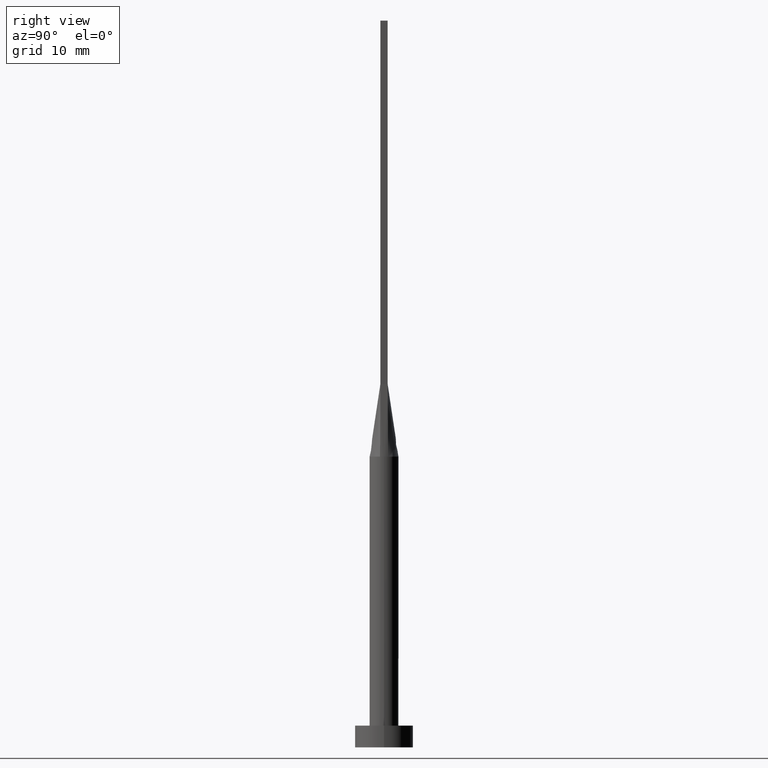
[diagram: clean part render]
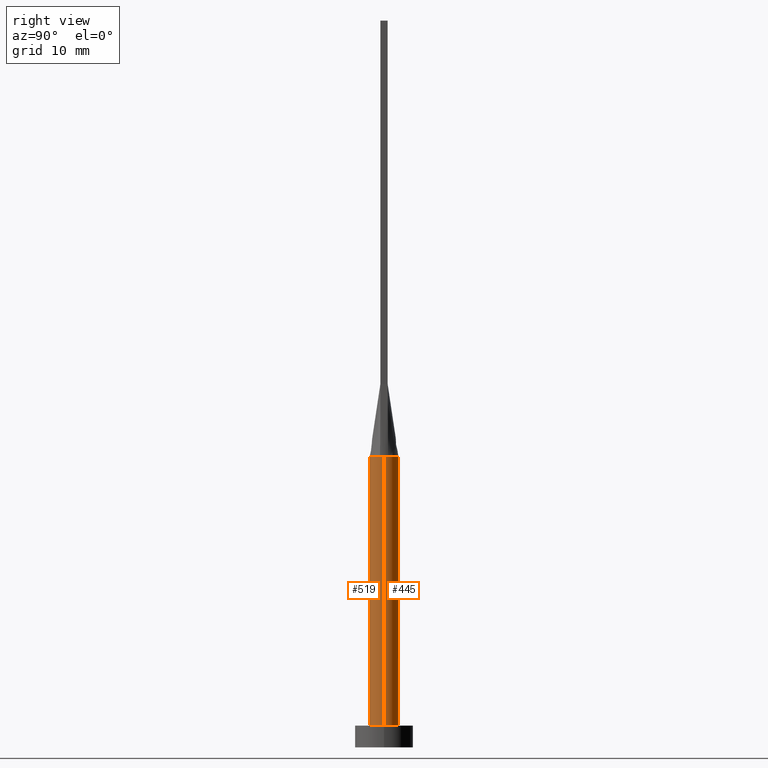
[diagram: same view with one multi-face feature highlighted, each face labeled with its STEP entity id]
A machine part, right view. The highlighted faces form ONE feature: a constant-radius fillet chain: 2 tangent blend faces with common blend radius 2 mm. The faces share edges in the B-rep.
Their STEP definitions:
[1] entity #519 (Cylinder):
#10 = CARTESIAN_POINT ( 'NONE',  ( -2.000000000000000000, 0.000000000000000000, 40.00000000000000000 ) ) ;
#22 = DIRECTION ( 'NONE',  ( 0.000000000000000000, 0.000000000000000000, 1.000000000000000000 ) ) ;
#26 = EDGE_CURVE ( 'NONE', #100, #422, #350, .T. ) ;
#46 = CARTESIAN_POINT ( 'NONE',  ( 0.000000000000000000, 0.000000000000000000, 40.00000000000000000 ) ) ;
#47 = DIRECTION ( 'NONE',  ( 1.000000000000000000, 0.000000000000000000, 0.000000000000000000 ) ) ;
#50 = CARTESIAN_POINT ( 'NONE',  ( 1.923186205402444449, -0.5494823831763672173, 40.00000000000000000 ) ) ;
#70 = AXIS2_PLACEMENT_3D ( 'NONE', #46, #266, #129 ) ;
#81 = AXIS2_PLACEMENT_3D ( 'NONE', #526, #22, #203 ) ;
#84 = VERTEX_POINT ( 'NONE', #359 ) ;
#100 = VERTEX_POINT ( 'NONE', #238 ) ;
#105 = CIRCLE ( 'NONE', #580, 2.000000000000000000 ) ;
#116 = AXIS2_PLACEMENT_3D ( 'NONE', #229, #333, #141 ) ;
#129 = DIRECTION ( 'NONE',  ( -1.000000000000000000, 0.000000000000000000, 0.000000000000000000 ) ) ;
#141 = DIRECTION ( 'NONE',  ( 1.000000000000000000, 0.000000000000000000, 0.000000000000000000 ) ) ;
#154 = ORIENTED_EDGE ( 'NONE', *, *, #210, .F. ) ;
#165 = ORIENTED_EDGE ( 'NONE', *, *, #478, .T. ) ;
#185 = DIRECTION ( 'NONE',  ( -0.000000000000000000, -0.000000000000000000, -1.000000000000000000 ) ) ;
#187 = ORIENTED_EDGE ( 'NONE', *, *, #394, .F. ) ;
#192 = CIRCLE ( 'NONE', #81, 2.000000000000000000 ) ;
#194 = EDGE_CURVE ( 'NONE', #468, #84, #395, .T. ) ;
#203 = DIRECTION ( 'NONE',  ( 1.000000000000000000, 3.552713678800500929E-15, 0.000000000000000000 ) ) ;
#208 = CIRCLE ( 'NONE', #116, 2.000000000000000000 ) ;
#210 = EDGE_CURVE ( 'NONE', #561, #100, #192, .T. ) ;
#213 = DIRECTION ( 'NONE',  ( -0.000000000000000000, -0.000000000000000000, -1.000000000000000000 ) ) ;
#229 = CARTESIAN_POINT ( 'NONE',  ( 0.000000000000000000, 0.000000000000000000, 40.00000000000000000 ) ) ;
#238 = CARTESIAN_POINT ( 'NONE',  ( 2.000000000000000000, 2.759698982225367658E-17, 39.99999999999999289 ) ) ;
#263 = CARTESIAN_POINT ( 'NONE',  ( 0.000000000000000000, 0.000000000000000000, 40.00000000000000000 ) ) ;
#266 = DIRECTION ( 'NONE',  ( -0.000000000000000000, -0.000000000000000000, -1.000000000000000000 ) ) ;
#287 = ORIENTED_EDGE ( 'NONE', *, *, #26, .F. ) ;
#304 = DIRECTION ( 'NONE',  ( 0.000000000000000000, 0.000000000000000000, 1.000000000000000000 ) ) ;
#310 = CARTESIAN_POINT ( 'NONE',  ( 2.000000000000000000, 2.449293598294706414E-16, 3.000000000000000000 ) ) ;
#332 = EDGE_LOOP ( 'NONE', ( #287, #154, #346, #187, #375, #165 ) ) ;
#333 = DIRECTION ( 'NONE',  ( 0.000000000000000000, 0.000000000000000000, 1.000000000000000000 ) ) ;
#345 = CARTESIAN_POINT ( 'NONE',  ( 0.000000000000000000, 0.000000000000000000, 3.000000000000000000 ) ) ;
#346 = ORIENTED_EDGE ( 'NONE', *, *, #570, .F. ) ;
#350 = LINE ( 'NONE', #573, #417 ) ;
#351 = FACE_OUTER_BOUND ( 'NONE', #332, .T. ) ;
#359 = CARTESIAN_POINT ( 'NONE',  ( -2.000000000000000000, 0.000000000000000000, 3.000000000000000000 ) ) ;
#375 = ORIENTED_EDGE ( 'NONE', *, *, #194, .T. ) ;
#380 = VECTOR ( 'NONE', #185, 1000.000000000000000 ) ;
#394 = EDGE_CURVE ( 'NONE', #468, #450, #105, .T. ) ;
#395 = LINE ( 'NONE', #10, #380 ) ;
#417 = VECTOR ( 'NONE', #213, 1000.000000000000000 ) ;
#422 = VERTEX_POINT ( 'NONE', #310 ) ;
#431 = CIRCLE ( 'NONE', #446, 2.000000000000000000 ) ;
#446 = AXIS2_PLACEMENT_3D ( 'NONE', #345, #304, #488 ) ;
#449 = DIRECTION ( 'NONE',  ( 0.000000000000000000, 0.000000000000000000, 1.000000000000000000 ) ) ;
#450 = VERTEX_POINT ( 'NONE', #500 ) ;
#468 = VERTEX_POINT ( 'NONE', #554 ) ;
#478 = EDGE_CURVE ( 'NONE', #84, #422, #431, .T. ) ;
#488 = DIRECTION ( 'NONE',  ( 1.000000000000000000, 0.000000000000000000, 0.000000000000000000 ) ) ;
#500 = CARTESIAN_POINT ( 'NONE',  ( -1.923161340940673369, -0.5494751859438878894, 40.00000000000000000 ) ) ;
#519 = ADVANCED_FACE ( 'NONE', ( #351 ), #540, .T. ) ;
#526 = CARTESIAN_POINT ( 'NONE',  ( 0.000000000000000000, 0.000000000000000000, 40.00000000000000000 ) ) ;
#540 = CYLINDRICAL_SURFACE ( 'NONE', #70, 2.000000000000000000 ) ;
#554 = CARTESIAN_POINT ( 'NONE',  ( -2.000000000000000000, 8.710755549421510381E-17, 39.99999999999999289 ) ) ;
#561 = VERTEX_POINT ( 'NONE', #50 ) ;
#570 = EDGE_CURVE ( 'NONE', #450, #561, #208, .T. ) ;
#573 = CARTESIAN_POINT ( 'NONE',  ( 2.000000000000000000, 2.449293598294706414E-16, 40.00000000000000000 ) ) ;
#580 = AXIS2_PLACEMENT_3D ( 'NONE', #263, #449, #47 ) ;
[2] entity #445 (Cylinder):
#4 = ORIENTED_EDGE ( 'NONE', *, *, #26, .T. ) ;
#8 = ORIENTED_EDGE ( 'NONE', *, *, #58, .T. ) ;
#10 = CARTESIAN_POINT ( 'NONE',  ( -2.000000000000000000, 0.000000000000000000, 40.00000000000000000 ) ) ;
#18 = CARTESIAN_POINT ( 'NONE',  ( -1.879022738048941710, 0.7035303061092221810, 40.00000000000000000 ) ) ;
#26 = EDGE_CURVE ( 'NONE', #100, #422, #350, .T. ) ;
#31 = DIRECTION ( 'NONE',  ( 1.000000000000000000, 0.000000000000000000, 0.000000000000000000 ) ) ;
#39 = CYLINDRICAL_SURFACE ( 'NONE', #467, 2.000000000000000000 ) ;
#44 = CARTESIAN_POINT ( 'NONE',  ( 1.616149014776643522, 1.193458220519943103, 40.00000000000000000 ) ) ;
#58 = EDGE_CURVE ( 'NONE', #422, #84, #248, .T. ) ;
#59 = CARTESIAN_POINT ( 'NONE',  ( -1.155438169178558017, 1.647245198242353936, 40.00000000000001421 ) ) ;
#83 = CARTESIAN_POINT ( 'NONE',  ( 0.000000000000000000, 0.000000000000000000, 40.00000000000000000 ) ) ;
#84 = VERTEX_POINT ( 'NONE', #359 ) ;
#89 = DIRECTION ( 'NONE',  ( -1.000000000000000000, 0.000000000000000000, 0.000000000000000000 ) ) ;
#100 = VERTEX_POINT ( 'NONE', #238 ) ;
#130 = CARTESIAN_POINT ( 'NONE',  ( 1.923154993136894975, 0.5494733089275741778, 40.00000000000000000 ) ) ;
#131 = CARTESIAN_POINT ( 'NONE',  ( 0.000000000000000000, 0.000000000000000000, 3.000000000000000000 ) ) ;
#142 = ORIENTED_EDGE ( 'NONE', *, *, #194, .F. ) ;
#148 = CARTESIAN_POINT ( 'NONE',  ( -1.486037034853319616, 1.356520562679218056, 40.00000000000000000 ) ) ;
#172 = DIRECTION ( 'NONE',  ( 0.000000000000000000, 0.000000000000000000, 1.000000000000000000 ) ) ;
#185 = DIRECTION ( 'NONE',  ( -0.000000000000000000, -0.000000000000000000, -1.000000000000000000 ) ) ;
#191 = B_SPLINE_CURVE_WITH_KNOTS ( 'NONE', 3,
 ( #130, #267, #452, #44, #495, #502, #335, #327, #473, #325, #234, #415, #59, #148, #245, #421, #18, #374 ),
 .UNSPECIFIED., .F., .F.,
 ( 4, 2, 2, 2, 2, 2, 2, 2, 4 ),
 ( 0.000000000000000000, 0.1249999999999999722, 0.2500000000000000000, 0.3750000000000000000, 0.5000000000000001110, 0.6250000000000001110, 0.7500000000000000000, 0.8750000000000000000, 1.000000000000000000 ),
 .UNSPECIFIED. ) ;
#194 = EDGE_CURVE ( 'NONE', #468, #84, #395, .T. ) ;
#195 = VERTEX_POINT ( 'NONE', #363 ) ;
#199 = EDGE_CURVE ( 'NONE', #301, #468, #364, .T. ) ;
#201 = DIRECTION ( 'NONE',  ( 1.000000000000000000, 0.000000000000000000, 0.000000000000000000 ) ) ;
#213 = DIRECTION ( 'NONE',  ( -0.000000000000000000, -0.000000000000000000, -1.000000000000000000 ) ) ;
#224 = AXIS2_PLACEMENT_3D ( 'NONE', #547, #436, #336 ) ;
#227 = DIRECTION ( 'NONE',  ( -0.000000000000000000, -0.000000000000000000, -1.000000000000000000 ) ) ;
#234 = CARTESIAN_POINT ( 'NONE',  ( -0.5022746254375797248, 1.951069421695588169, 40.00000000000000000 ) ) ;
#238 = CARTESIAN_POINT ( 'NONE',  ( 2.000000000000000000, 2.759698982225367658E-17, 39.99999999999999289 ) ) ;
#245 = CARTESIAN_POINT ( 'NONE',  ( -1.616149014776643966, 1.193458220519943103, 40.00000000000002132 ) ) ;
#248 = CIRCLE ( 'NONE', #314, 2.000000000000000000 ) ;
#250 = DIRECTION ( 'NONE',  ( 0.000000000000000000, 0.000000000000000000, 1.000000000000000000 ) ) ;
#267 = CARTESIAN_POINT ( 'NONE',  ( 1.879022738048942154, 0.7035303061092218480, 39.99999999999999289 ) ) ;
#301 = VERTEX_POINT ( 'NONE', #347 ) ;
#310 = CARTESIAN_POINT ( 'NONE',  ( 2.000000000000000000, 2.449293598294706414E-16, 3.000000000000000000 ) ) ;
#313 = FACE_OUTER_BOUND ( 'NONE', #483, .T. ) ;
#314 = AXIS2_PLACEMENT_3D ( 'NONE', #131, #172, #31 ) ;
#321 = ORIENTED_EDGE ( 'NONE', *, *, #199, .F. ) ;
#325 = CARTESIAN_POINT ( 'NONE',  ( -0.2514338042514528415, 1.999999999999999556, 40.00000000000000000 ) ) ;
#327 = CARTESIAN_POINT ( 'NONE',  ( 0.5022746254375803909, 1.951069421695587947, 40.00000000000000000 ) ) ;
#335 = CARTESIAN_POINT ( 'NONE',  ( 0.9545234919502409987, 1.774214358793529955, 40.00000000000000000 ) ) ;
#336 = DIRECTION ( 'NONE',  ( 1.000000000000000000, 0.000000000000000000, 0.000000000000000000 ) ) ;
#347 = CARTESIAN_POINT ( 'NONE',  ( -1.923179810488875541, 0.5494804890868837388, 40.00000000000000000 ) ) ;
#350 = LINE ( 'NONE', #573, #417 ) ;
#359 = CARTESIAN_POINT ( 'NONE',  ( -2.000000000000000000, 0.000000000000000000, 3.000000000000000000 ) ) ;
#363 = CARTESIAN_POINT ( 'NONE',  ( 1.923154993136894975, 0.5494733089275741778, 40.00000000000000000 ) ) ;
#364 = CIRCLE ( 'NONE', #224, 2.000000000000000000 ) ;
#374 = CARTESIAN_POINT ( 'NONE',  ( -1.923179810488875541, 0.5494804890868837388, 40.00000000000000000 ) ) ;
#380 = VECTOR ( 'NONE', #185, 1000.000000000000000 ) ;
#391 = CIRCLE ( 'NONE', #534, 2.000000000000000000 ) ;
#395 = LINE ( 'NONE', #10, #380 ) ;
#415 = CARTESIAN_POINT ( 'NONE',  ( -0.9545234919502401105, 1.774214358793530177, 40.00000000000000000 ) ) ;
#417 = VECTOR ( 'NONE', #213, 1000.000000000000000 ) ;
#421 = CARTESIAN_POINT ( 'NONE',  ( -1.812374357931688884, 0.8669367617086288780, 40.00000000000001421 ) ) ;
#422 = VERTEX_POINT ( 'NONE', #310 ) ;
#436 = DIRECTION ( 'NONE',  ( 0.000000000000000000, 0.000000000000000000, 1.000000000000000000 ) ) ;
#445 = ADVANCED_FACE ( 'NONE', ( #313 ), #39, .T. ) ;
#452 = CARTESIAN_POINT ( 'NONE',  ( 1.812374357931689328, 0.8669367617086293221, 40.00000000000002132 ) ) ;
#457 = EDGE_CURVE ( 'NONE', #195, #301, #191, .T. ) ;
#467 = AXIS2_PLACEMENT_3D ( 'NONE', #493, #227, #89 ) ;
#468 = VERTEX_POINT ( 'NONE', #554 ) ;
#473 = CARTESIAN_POINT ( 'NONE',  ( 0.2514338042514535632, 1.999999999999999556, 39.99999999999999289 ) ) ;
#483 = EDGE_LOOP ( 'NONE', ( #555, #4, #8, #142, #321, #549 ) ) ;
#493 = CARTESIAN_POINT ( 'NONE',  ( 0.000000000000000000, 0.000000000000000000, 40.00000000000000000 ) ) ;
#495 = CARTESIAN_POINT ( 'NONE',  ( 1.486037034853319616, 1.356520562679217834, 39.99999999999997868 ) ) ;
#497 = EDGE_CURVE ( 'NONE', #100, #195, #391, .T. ) ;
#502 = CARTESIAN_POINT ( 'NONE',  ( 1.155438169178558461, 1.647245198242353714, 40.00000000000000000 ) ) ;
#534 = AXIS2_PLACEMENT_3D ( 'NONE', #83, #250, #201 ) ;
#547 = CARTESIAN_POINT ( 'NONE',  ( 0.000000000000000000, 0.000000000000000000, 40.00000000000000000 ) ) ;
#549 = ORIENTED_EDGE ( 'NONE', *, *, #457, .F. ) ;
#554 = CARTESIAN_POINT ( 'NONE',  ( -2.000000000000000000, 8.710755549421510381E-17, 39.99999999999999289 ) ) ;
#555 = ORIENTED_EDGE ( 'NONE', *, *, #497, .F. ) ;
#573 = CARTESIAN_POINT ( 'NONE',  ( 2.000000000000000000, 2.449293598294706414E-16, 40.00000000000000000 ) ) ;